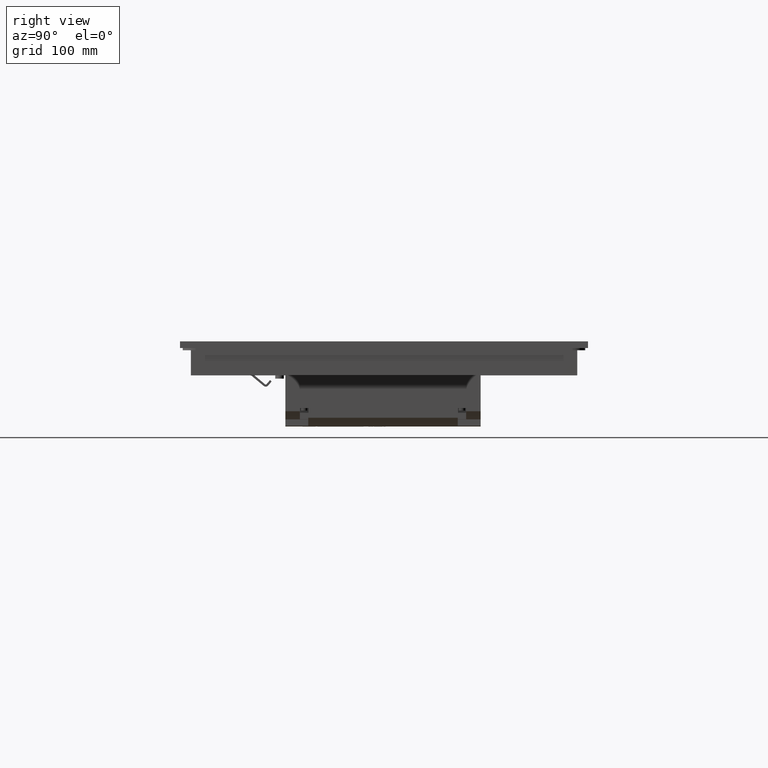
[diagram: clean part render]
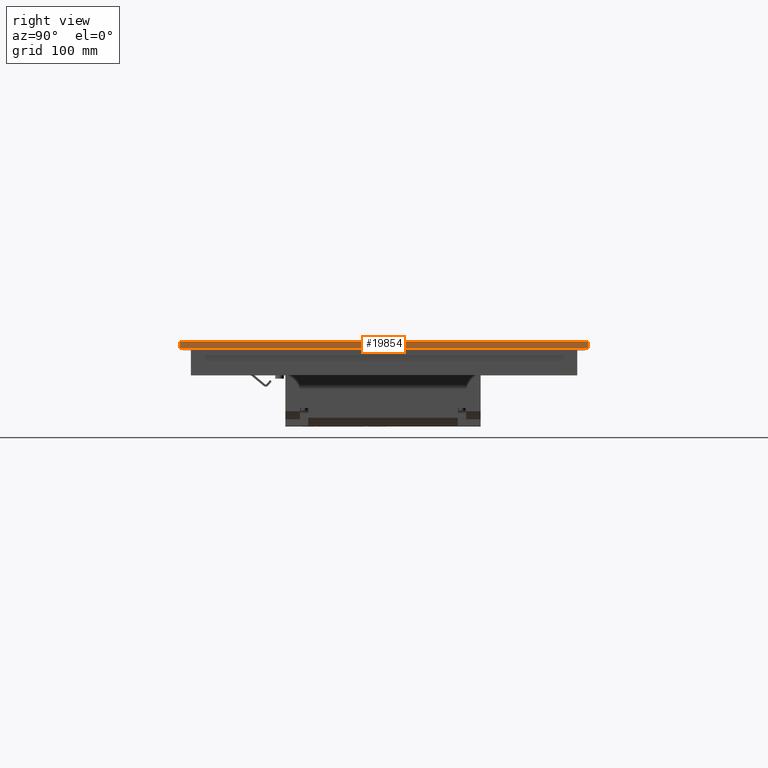
[diagram: same view with one face highlighted and labeled with its STEP entity id]
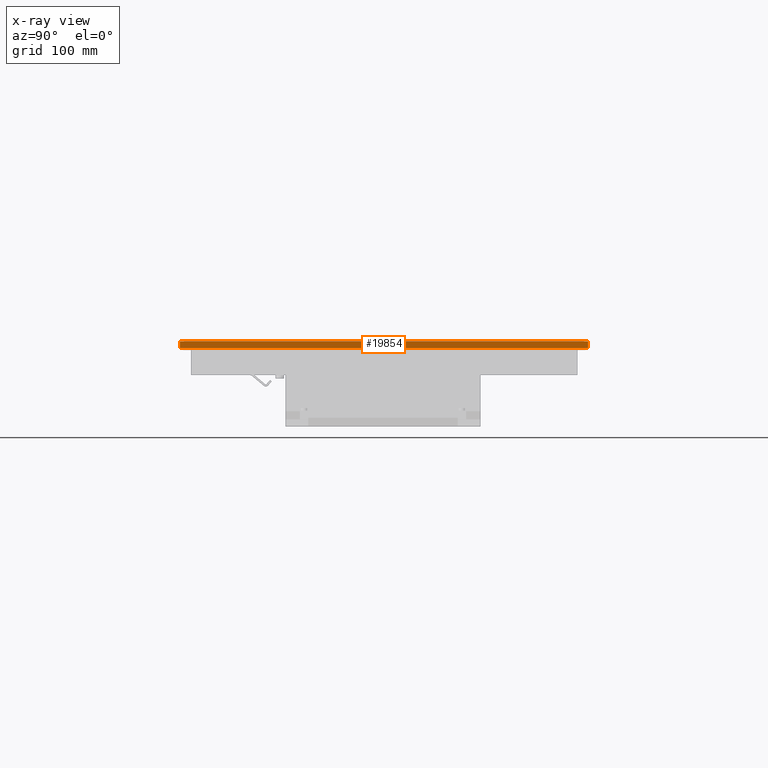
[diagram: x-ray of the same camera — body ghosted, the highlighted face saturated]
A machine part, right view. The second image highlights one B-rep face of the part: STEP entity #19854.
The next image is the same camera in x-ray: the body ghosted, the highlighted face saturated — about 0% of this face is hidden behind the body in this view.
In plain terms, the highlighted planar face has unit normal (1, 0, 0).
Its self-contained STEP definition (entity closure, byte-faithful):
#4697=LINE('',#68276,#10043);
#4703=LINE('',#68289,#10049);
#4708=LINE('',#68298,#10054);
#4709=LINE('',#68299,#10055);
#10043=VECTOR('',#56277,1.);
#10049=VECTOR('',#56285,1.);
#10054=VECTOR('',#56294,1.);
#10055=VECTOR('',#56295,1.);
#15011=FACE_OUTER_BOUND('',#23573,.T.);
#17426=PLANE('',#51563);
#19854=ADVANCED_FACE('',(#15011),#17426,.T.);
#23573=EDGE_LOOP('',(#28525,#28526,#28527,#28528));
#28525=ORIENTED_EDGE('',*,*,#45103,.F.);
#28526=ORIENTED_EDGE('',*,*,#45092,.F.);
#28527=ORIENTED_EDGE('',*,*,#45104,.T.);
#28528=ORIENTED_EDGE('',*,*,#45098,.T.);
#40288=VERTEX_POINT('',#68271);
#40290=VERTEX_POINT('',#68275);
#40295=VERTEX_POINT('',#68287);
#40297=VERTEX_POINT('',#68290);
#45092=EDGE_CURVE('',#40290,#40288,#4697,.T.);
#45098=EDGE_CURVE('',#40297,#40295,#4703,.T.);
#45103=EDGE_CURVE('',#40288,#40295,#4708,.T.);
#45104=EDGE_CURVE('',#40290,#40297,#4709,.T.);
#51563=AXIS2_PLACEMENT_3D('',#68300,#56296,#56297);
#56277=DIRECTION('',(0.,1.,0.));
#56285=DIRECTION('',(0.,1.,0.));
#56294=DIRECTION('',(0.,0.,1.));
#56295=DIRECTION('',(0.,0.,1.));
#56296=DIRECTION('',(-1.,0.,0.));
#56297=DIRECTION('',(0.,0.,1.));
#68271=CARTESIAN_POINT('',(-280.,154.5,-2.5));
#68275=CARTESIAN_POINT('',(-280.,-225.55,-2.5));
#68276=CARTESIAN_POINT('',(-280.,-225.55,-2.5));
#68287=CARTESIAN_POINT('',(-280.,154.5,3.7));
#68289=CARTESIAN_POINT('',(-280.,-225.55,3.7));
#68290=CARTESIAN_POINT('',(-280.,-225.55,3.7));
#68298=CARTESIAN_POINT('',(-280.,154.5,-2.49999999999984));
#68299=CARTESIAN_POINT('',(-280.,-225.55,-2.49999999999984));
#68300=CARTESIAN_POINT('',(-280.,-225.55,-2.49999999999984));